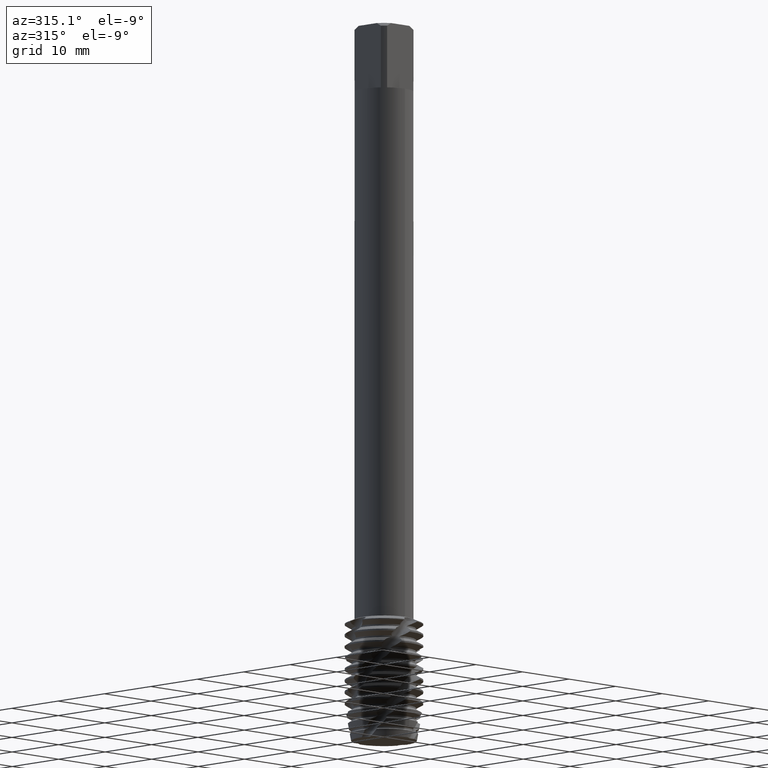
[diagram: clean part render]
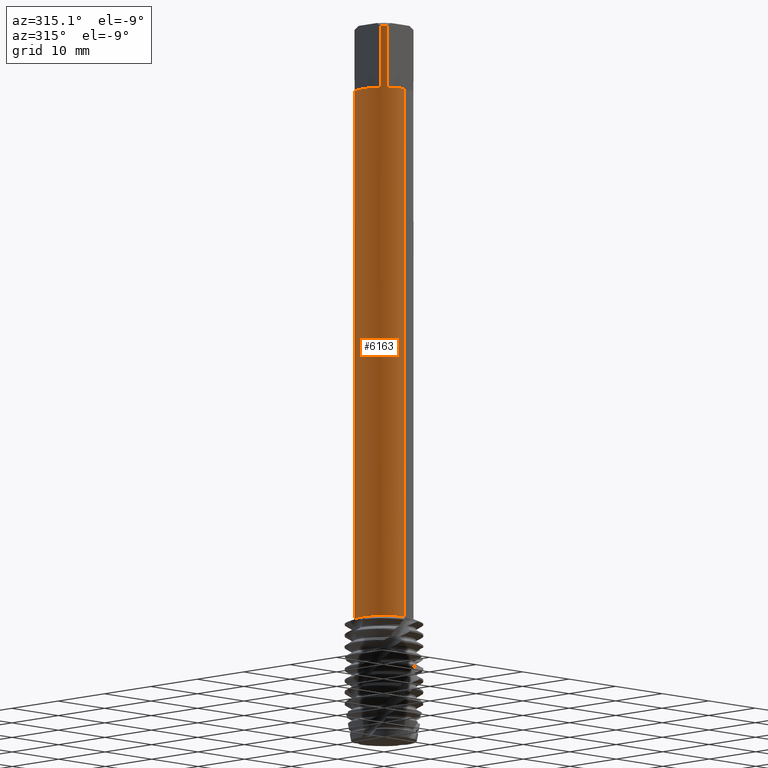
[diagram: same view with one face highlighted and labeled with its STEP entity id]
A machine part, auxiliary view. The second image highlights one B-rep face of the part: STEP entity #6163.
In plain terms, the highlighted cylindrical surface (edge-blend (fillet) strip) has radius 4.5 mm, axis along (-0, -0, 1).
Its self-contained STEP definition (entity closure, byte-faithful):
#2151=VERTEX_POINT('',#6357);
#2295=EDGE_CURVE('',#2361,#2923,#6518,.T.);
#2361=VERTEX_POINT('',#6592);
#2379=EDGE_CURVE('',#4699,#2591,#6610,.T.);
#2399=EDGE_CURVE('',#4029,#2701,#6632,.T.);
#2591=VERTEX_POINT('',#6840);
#2701=VERTEX_POINT('',#6963);
#2775=VERTEX_POINT('',#7040);
#2895=EDGE_CURVE('',#5791,#5331,#7165,.T.);
#2919=VERTEX_POINT('',#7193);
#2923=VERTEX_POINT('',#7197);
#2957=EDGE_CURVE('',#4329,#2919,#7231,.T.);
#3065=EDGE_CURVE('',#3343,#5697,#7351,.T.);
#3267=EDGE_CURVE('',#5407,#5791,#7572,.T.);
#3343=VERTEX_POINT('',#7654);
#3397=EDGE_CURVE('',#5823,#4329,#7711,.T.);
#3411=EDGE_CURVE('',#2701,#4851,#7726,.T.);
#3599=EDGE_CURVE('',#2923,#5823,#7926,.T.);
#3915=VERTEX_POINT('',#8275);
#4029=VERTEX_POINT('',#8399);
#4145=EDGE_CURVE('',#5259,#2151,#8522,.T.);
#4243=EDGE_CURVE('',#4851,#3343,#8628,.T.);
#4329=VERTEX_POINT('',#8726);
#4437=EDGE_CURVE('',#5697,#5407,#8845,.T.);
#4699=VERTEX_POINT('',#9135);
#4799=EDGE_CURVE('',#2919,#3915,#9246,.T.);
#4851=VERTEX_POINT('',#9302);
#5109=EDGE_CURVE('',#3915,#5259,#9577,.T.);
#5179=EDGE_CURVE('',#2775,#2361,#9652,.T.);
#5183=EDGE_CURVE('',#2591,#4029,#9656,.T.);
#5259=VERTEX_POINT('',#9736);
#5331=VERTEX_POINT('',#9819);
#5385=EDGE_CURVE('',#5667,#2775,#9877,.T.);
#5407=VERTEX_POINT('',#9901);
#5501=EDGE_CURVE('',#4699,#2151,#10003,.T.);
#5667=VERTEX_POINT('',#10183);
#5697=VERTEX_POINT('',#10215);
#5791=VERTEX_POINT('',#10317);
#5823=VERTEX_POINT('',#10350);
#6163=ADVANCED_FACE('',(#10718),#10719,.T.);
#6257=EDGE_CURVE('',#5331,#5667,#10822,.T.);
#6357=CARTESIAN_POINT('',(0.0,4.5,-91.3649147038914));
#6518=B_SPLINE_CURVE_WITH_KNOTS('',3,(#11902,#11903,#11904,#11905,#11906,#11907,#11908,#11909,#11910,#11911,#11912,#11913,#11914,#11915,#11916,#11917,#11918,#11919,#11920,#11921,#11922,#11923,#11924,#11925,#11926,#11927,#11928),.UNSPECIFIED.,.F.,.F.,(4,2,3,2,2,2,2,2,2,2,2,2,4),(-0.488237494321567,-0.244118747160784,0.0,0.244118747160784,0.488237494321568,0.732868933443254,0.97750037256494,1.22127161368315,1.46504285480135,1.70906790328602,1.95309295177068,2.19711800025535,2.44114304874002),.UNSPECIFIED.);
#6592=CARTESIAN_POINT('',(-0.437741049944738,4.47865859082753,-58.3289553734705));
#6610=LINE('',#12368,#12369);
#6632=LINE('',#12456,#12457);
#6840=CARTESIAN_POINT('',(5.5107285922007E-016,-4.5,-10.0));
#6963=CARTESIAN_POINT('',(-2.82842712474619,-3.5,-0.5));
#7040=CARTESIAN_POINT('',(7.47027679573161E-015,4.5,-58.6709419305969));
#7165=LINE('',#14936,#14937);
#7193=CARTESIAN_POINT('',(2.26705147367026E-015,4.5,-59.2916020202921));
#7197=CARTESIAN_POINT('',(-0.506100591205212,4.47144967449951,-58.0354099788274));
#7231=LINE('',#15052,#15053);
#7351=CIRCLE('',#15939,4.5);
#7572=CIRCLE('',#16758,4.5);
#7654=CARTESIAN_POINT('',(-3.5,-2.82842712474619,-10.0));
#7711=B_SPLINE_CURVE_WITH_KNOTS('',3,(#17209,#17210,#17211,#17212,#17213,#17214,#17215,#17216,#17217,#17218,#17219,#17220,#17221,#17222),.UNSPECIFIED.,.F.,.F.,(4,2,2,2,2,2,4),(2.81999754028323,3.22260604537047,3.62521455045771,4.02782305554494,4.42960823678614,4.83139341802734,5.23541269591623),.UNSPECIFIED.);
#7726=CIRCLE('',#17282,4.5);
#7926=CIRCLE('',#17794,4.5);
#8275=CARTESIAN_POINT('',(-1.2033474771987,4.33612209804101,-59.8848723517915));
#8399=CARTESIAN_POINT('',(-2.82842712474619,-3.5,-10.0));
#8522=LINE('',#20962,#20963);
#8628=LINE('',#21469,#21470);
#8726=CARTESIAN_POINT('',(6.33495265233492E-016,4.5,-59.1000721396693));
#8845=LINE('',#23069,#23070);
#9135=CARTESIAN_POINT('',(5.51072859220069E-016,-4.5,-91.3649147038914));
#9246=ELLIPSE('',#24921,5.01717794419287,4.5);
#9302=CARTESIAN_POINT('',(-3.5,-2.82842712474619,-0.5));
#9577=B_SPLINE_CURVE_WITH_KNOTS('',3,(#26602,#26603,#26604,#26605,#26606,#26607,#26608,#26609,#26610,#26611,#26612,#26613,#26614,#26615),.UNSPECIFIED.,.F.,.F.,(4,2,2,2,2,2,4),(5.00928657264586,5.56602959440373,6.12289935657729,6.40133423766407,6.67976911875085,6.95779012540739,7.23581113206392),.UNSPECIFIED.);
#9652=B_SPLINE_CURVE_WITH_KNOTS('',3,(#27102,#27103,#27104,#27105,#27106,#27107,#27108,#27109,#27110,#27111,#27112,#27113,#27114,#27115,#27116,#27117,#27118,#27119,#27120,#27121,#27122,#27123,#27124,#27125,#27126,#27127,#27128),.UNSPECIFIED.,.F.,.F.,(4,2,3,2,2,2,2,2,2,2,2,2,4),(-0.488237494321567,-0.244118747160784,0.0,0.244118747160784,0.488237494321568,0.732868933443254,0.97750037256494,1.22127161368315,1.46504285480135,1.70906790328602,1.95309295177068,2.19711800025535,2.44114304874002),.UNSPECIFIED.);
#9656=CIRCLE('',#27135,4.5);
#9736=CARTESIAN_POINT('',(-3.31925953802787E-015,4.5,-60.477922824093));
#9819=CARTESIAN_POINT('',(-2.82842712474619,3.5,-10.0));
#9877=LINE('',#28264,#28265);
#9901=CARTESIAN_POINT('',(-3.5,2.82842712474619,-0.5));
#10003=CIRCLE('',#28785,4.5);
#10183=CARTESIAN_POINT('',(-5.5107285922007E-016,4.5,-10.0));
#10215=CARTESIAN_POINT('',(-3.5,2.82842712474619,-10.0));
#10317=CARTESIAN_POINT('',(-2.82842712474619,3.5,-0.5));
#10350=CARTESIAN_POINT('',(-0.931566063517917,4.40252026336072,-58.0354099788274));
#10718=FACE_OUTER_BOUND('',#32229,.T.);
#10719=CYLINDRICAL_SURFACE('',#32230,4.5);
#10822=CIRCLE('',#32684,4.5);
#11902=CARTESIAN_POINT('',(0.598610493082049,4.46000734052894,-57.582236711173));
#11903=CARTESIAN_POINT('',(0.655861677259137,4.45232323667594,-57.6395499545912));
#11904=CARTESIAN_POINT('',(0.705567749493119,4.44446773270288,-57.7121492432381));
#11905=CARTESIAN_POINT('',(0.771571740116611,4.43348579996644,-57.8714202755976));
#11906=CARTESIAN_POINT('',(0.787860883069711,4.43049379064327,-57.9581048956078));
#11907=CARTESIAN_POINT('',(0.787860883069711,4.43049379064327,-58.0394778113281));
#11908=CARTESIAN_POINT('',(0.787860883069711,4.43049379064327,-58.1208507270484));
#11909=CARTESIAN_POINT('',(0.771571740116611,4.43348579996644,-58.2075353470586));
#11910=CARTESIAN_POINT('',(0.705567749493119,4.44446773270288,-58.3668063794181));
#11911=CARTESIAN_POINT('',(0.655861677259137,4.45232323667594,-58.439405668065));
#11912=CARTESIAN_POINT('',(0.541239071429477,4.4677075823407,-58.5541525227121));
#11913=CARTESIAN_POINT('',(0.468577077404002,4.47625259584298,-58.6039697560255));
#11914=CARTESIAN_POINT('',(0.309153440232775,4.49008083772597,-58.670130310445));
#11915=CARTESIAN_POINT('',(0.222377597844716,4.49524166173767,-58.6864649424972));
#11916=CARTESIAN_POINT('',(0.0596564980879214,4.5003381889972,-58.6864649424972));
#11917=CARTESIAN_POINT('',(-0.0269868018666341,4.5006247904204,-58.6702329320859));
#11918=CARTESIAN_POINT('',(-0.186338276307759,4.49684665499258,-58.6042445557697));
#11919=CARTESIAN_POINT('',(-0.259050734958625,4.49290602438602,-58.554491488258));
#11920=CARTESIAN_POINT('',(-0.373922504658752,4.48480776485445,-58.4396992737441));
#11921=CARTESIAN_POINT('',(-0.42374060501627,4.4801280654383,-58.3669685517597));
#11922=CARTESIAN_POINT('',(-0.489837971487068,4.47338376984478,-58.2075321781649));
#11923=CARTESIAN_POINT('',(-0.506113379268523,4.4714482270653,-58.1208194941563));
#11924=CARTESIAN_POINT('',(-0.506113379268523,4.4714482270653,-57.9581361284999));
#11925=CARTESIAN_POINT('',(-0.489837971487066,4.47338376984478,-57.8714234444913));
#11926=CARTESIAN_POINT('',(-0.423740605016268,4.4801280654383,-57.7119870708965));
#11927=CARTESIAN_POINT('',(-0.373922504658753,4.48480776485445,-57.6392563489121));
#11928=CARTESIAN_POINT('',(-0.316456735098646,4.4888590014402,-57.581830377642));
#12368=CARTESIAN_POINT('',(5.5107285922007E-016,-4.5,-78.6824573519457));
#12369=VECTOR('',#33392,1.0);
#12456=CARTESIAN_POINT('',(-2.82842712474619,-3.5,-5.25));
#12457=VECTOR('',#33413,1.0);
#14936=CARTESIAN_POINT('',(-2.82842712474619,3.5,-5.25));
#14937=VECTOR('',#33834,1.0);
#15052=CARTESIAN_POINT('',(-5.5107285922007E-016,4.5,-78.6824573519457));
#15053=VECTOR('',#33909,1.0);
#15939=AXIS2_PLACEMENT_3D('',#34035,#34036,#34037);
#16758=AXIS2_PLACEMENT_3D('',#34253,#34254,#34255);
#17209=CARTESIAN_POINT('',(-0.850223392208606,4.41895012229616,-57.6354226435562));
#17210=CARTESIAN_POINT('',(-0.904683437653221,4.40847179893042,-57.7666053947803));
#17211=CARTESIAN_POINT('',(-0.931598116111679,4.40251348096257,-57.9094688396304));
#17212=CARTESIAN_POINT('',(-0.931598116111679,4.40251348096257,-58.1778745096886));
#17213=CARTESIAN_POINT('',(-0.904683437653219,4.40847179893041,-58.3207379545388));
#17214=CARTESIAN_POINT('',(-0.795763346764001,4.42942844566193,-58.5831034569869));
#17215=CARTESIAN_POINT('',(-0.713778435946993,4.44405474160097,-58.7026436084961));
#17216=CARTESIAN_POINT('',(-0.524976251458227,4.47028689771802,-58.8912171086565));
#17217=CARTESIAN_POINT('',(-0.40550447177892,4.4836153925366,-58.973014822313));
#17218=CARTESIAN_POINT('',(-0.143384369006631,4.49963129451709,-59.0816323467314));
#17219=CARTESIAN_POINT('',(-0.000707766739498794,4.50199248263676,-59.1084317670779));
#17220=CARTESIAN_POINT('',(0.267776092112687,4.49404414824457,-59.1084317670779));
#17221=CARTESIAN_POINT('',(0.410798117555779,4.48315729513745,-59.0813649320142));
#17222=CARTESIAN_POINT('',(0.541951703170929,4.46724617090105,-59.0268324008977));
#17282=AXIS2_PLACEMENT_3D('',#34397,#34398,#34399);
#17794=AXIS2_PLACEMENT_3D('',#34564,#34565,#34566);
#20962=CARTESIAN_POINT('',(-5.5107285922007E-016,4.5,-78.6824573519457));
#20963=VECTOR('',#35197,1.0);
#21469=CARTESIAN_POINT('',(-3.5,-2.82842712474619,-5.25));
#21470=VECTOR('',#35297,1.0);
#23069=CARTESIAN_POINT('',(-3.5,2.82842712474619,-5.25));
#23070=VECTOR('',#35502,1.0);
#24921=AXIS2_PLACEMENT_3D('',#35911,#35912,#35913);
#26602=CARTESIAN_POINT('',(-1.37898170158697,4.28350434418927,-59.5751271965754));
#26603=CARTESIAN_POINT('',(-1.30401050073994,4.30763968568169,-59.7554290227717));
#26604=CARTESIAN_POINT('',(-1.19150514881565,4.34143094124777,-59.9192705231025));
#26605=CARTESIAN_POINT('',(-0.932859747393677,4.40425792748471,-60.1780135031786));
#26606=CARTESIAN_POINT('',(-0.768955753958505,4.43754641363357,-60.290648069192));
#26607=CARTESIAN_POINT('',(-0.498353399802765,4.47324509387064,-60.4032253728295));
#26608=CARTESIAN_POINT('',(-0.404091648536853,4.48283151844287,-60.4317231620603));
#26609=CARTESIAN_POINT('',(-0.214084281205441,4.49591330028805,-60.4691882523958));
#26610=CARTESIAN_POINT('',(-0.118336086251352,4.4994011344625,-60.4781451001578));
#26611=CARTESIAN_POINT('',(0.0671462255047121,4.50045328753729,-60.4781451001578));
#26612=CARTESIAN_POINT('',(0.162791105789783,4.49805968638437,-60.4692143814867));
#26613=CARTESIAN_POINT('',(0.352656619267635,4.48716783676345,-60.4318200789286));
#26614=CARTESIAN_POINT('',(0.446879650707235,4.47867716616224,-60.4033664657591));
#26615=CARTESIAN_POINT('',(0.537063139356246,4.46783652166737,-60.3658822146561));
#27102=CARTESIAN_POINT('',(0.598610493082049,4.46000734052894,-57.582236711173));
#27103=CARTESIAN_POINT('',(0.655861677259137,4.45232323667594,-57.6395499545912));
#27104=CARTESIAN_POINT('',(0.705567749493119,4.44446773270288,-57.7121492432381));
#27105=CARTESIAN_POINT('',(0.771571740116611,4.43348579996644,-57.8714202755976));
#27106=CARTESIAN_POINT('',(0.787860883069711,4.43049379064327,-57.9581048956078));
#27107=CARTESIAN_POINT('',(0.787860883069711,4.43049379064327,-58.0394778113281));
#27108=CARTESIAN_POINT('',(0.787860883069711,4.43049379064327,-58.1208507270484));
#27109=CARTESIAN_POINT('',(0.771571740116611,4.43348579996644,-58.2075353470586));
#27110=CARTESIAN_POINT('',(0.705567749493119,4.44446773270288,-58.3668063794181));
#27111=CARTESIAN_POINT('',(0.655861677259137,4.45232323667594,-58.439405668065));
#27112=CARTESIAN_POINT('',(0.541239071429477,4.4677075823407,-58.5541525227121));
#27113=CARTESIAN_POINT('',(0.468577077404002,4.47625259584298,-58.6039697560255));
#27114=CARTESIAN_POINT('',(0.309153440232775,4.49008083772597,-58.670130310445));
#27115=CARTESIAN_POINT('',(0.222377597844716,4.49524166173767,-58.6864649424972));
#27116=CARTESIAN_POINT('',(0.0596564980879214,4.5003381889972,-58.6864649424972));
#27117=CARTESIAN_POINT('',(-0.0269868018666341,4.5006247904204,-58.6702329320859));
#27118=CARTESIAN_POINT('',(-0.186338276307759,4.49684665499258,-58.6042445557697));
#27119=CARTESIAN_POINT('',(-0.259050734958625,4.49290602438602,-58.554491488258));
#27120=CARTESIAN_POINT('',(-0.373922504658752,4.48480776485445,-58.4396992737441));
#27121=CARTESIAN_POINT('',(-0.42374060501627,4.4801280654383,-58.3669685517597));
#27122=CARTESIAN_POINT('',(-0.489837971487068,4.47338376984478,-58.2075321781649));
#27123=CARTESIAN_POINT('',(-0.506113379268523,4.4714482270653,-58.1208194941563));
#27124=CARTESIAN_POINT('',(-0.506113379268523,4.4714482270653,-57.9581361284999));
#27125=CARTESIAN_POINT('',(-0.489837971487066,4.47338376984478,-57.8714234444913));
#27126=CARTESIAN_POINT('',(-0.423740605016268,4.4801280654383,-57.7119870708965));
#27127=CARTESIAN_POINT('',(-0.373922504658753,4.48480776485445,-57.6392563489121));
#27128=CARTESIAN_POINT('',(-0.316456735098646,4.4888590014402,-57.581830377642));
#27135=AXIS2_PLACEMENT_3D('',#36210,#36211,#36212);
#28264=CARTESIAN_POINT('',(-5.5107285922007E-016,4.5,-78.6824573519457));
#28265=VECTOR('',#36487,1.0);
#28785=AXIS2_PLACEMENT_3D('',#36596,#36597,#36598);
#32229=EDGE_LOOP('',(#37371,#37372,#37373,#37374,#37375,#37376,#37377,#37378,#37379,#37380,#37381,#37382,#37383,#37384,#37385,#37386,#37387,#37388,#37389,#37390));
#32230=AXIS2_PLACEMENT_3D('',#37391,#37392,#37393);
#32684=AXIS2_PLACEMENT_3D('',#37489,#37490,#37491);
#33392=DIRECTION('',(-0.0,-0.0,1.0));
#33413=DIRECTION('',(-0.0,-0.0,1.0));
#33834=DIRECTION('',(0.0,0.0,-1.0));
#33909=DIRECTION('',(0.0,0.0,-1.0));
#34035=CARTESIAN_POINT('',(0.0,0.0,-10.0));
#34036=DIRECTION('',(0.0,0.0,-1.0));
#34037=DIRECTION('',(0.0,1.0,0.0));
#34253=CARTESIAN_POINT('',(0.0,0.0,-0.5));
#34254=DIRECTION('',(0.0,0.0,-1.0));
#34255=DIRECTION('',(0.0,1.0,0.0));
#34397=CARTESIAN_POINT('',(0.0,0.0,-0.5));
#34398=DIRECTION('',(0.0,0.0,-1.0));
#34399=DIRECTION('',(0.0,1.0,0.0));
#34564=CARTESIAN_POINT('',(0.0,0.0,-58.0354099788274));
#34565=DIRECTION('',(0.0,-0.0,1.0));
#34566=DIRECTION('',(0.0,1.0,0.0));
#35197=DIRECTION('',(0.0,0.0,-1.0));
#35297=DIRECTION('',(0.0,0.0,-1.0));
#35502=DIRECTION('',(-0.0,-0.0,1.0));
#35911=CARTESIAN_POINT('',(0.0,0.0,-59.2916020202921));
#35912=DIRECTION('',(-0.442195774284071,0.0,0.896918556617774));
#35913=DIRECTION('',(0.896918556617774,-0.0,0.442195774284071));
#36210=CARTESIAN_POINT('',(0.0,0.0,-10.0));
#36211=DIRECTION('',(0.0,0.0,-1.0));
#36212=DIRECTION('',(0.0,1.0,0.0));
#36487=DIRECTION('',(0.0,0.0,-1.0));
#36596=CARTESIAN_POINT('',(0.0,0.0,-91.3649147038914));
#36597=DIRECTION('',(0.0,0.0,-1.0));
#36598=DIRECTION('',(0.0,1.0,0.0));
#37371=ORIENTED_EDGE('',*,*,#5385,.T.);
#37372=ORIENTED_EDGE('',*,*,#5179,.T.);
#37373=ORIENTED_EDGE('',*,*,#2295,.T.);
#37374=ORIENTED_EDGE('',*,*,#3599,.T.);
#37375=ORIENTED_EDGE('',*,*,#3397,.T.);
#37376=ORIENTED_EDGE('',*,*,#2957,.T.);
#37377=ORIENTED_EDGE('',*,*,#4799,.T.);
#37378=ORIENTED_EDGE('',*,*,#5109,.T.);
#37379=ORIENTED_EDGE('',*,*,#4145,.T.);
#37380=ORIENTED_EDGE('',*,*,#5501,.F.);
#37381=ORIENTED_EDGE('',*,*,#2379,.T.);
#37382=ORIENTED_EDGE('',*,*,#5183,.T.);
#37383=ORIENTED_EDGE('',*,*,#2399,.T.);
#37384=ORIENTED_EDGE('',*,*,#3411,.T.);
#37385=ORIENTED_EDGE('',*,*,#4243,.T.);
#37386=ORIENTED_EDGE('',*,*,#3065,.T.);
#37387=ORIENTED_EDGE('',*,*,#4437,.T.);
#37388=ORIENTED_EDGE('',*,*,#3267,.T.);
#37389=ORIENTED_EDGE('',*,*,#2895,.T.);
#37390=ORIENTED_EDGE('',*,*,#6257,.T.);
#37391=CARTESIAN_POINT('',(0.0,0.0,-78.6824573519457));
#37392=DIRECTION('',(-0.0,-0.0,1.0));
#37393=DIRECTION('',(0.0,1.0,0.0));
#37489=CARTESIAN_POINT('',(0.0,0.0,-10.0));
#37490=DIRECTION('',(0.0,0.0,-1.0));
#37491=DIRECTION('',(0.0,1.0,0.0));